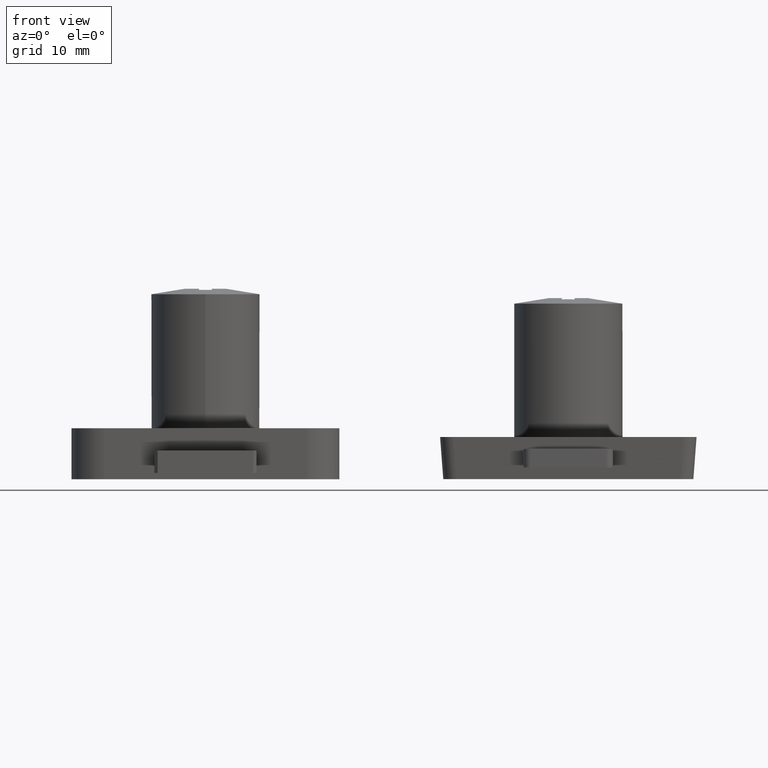
[diagram: clean part render]
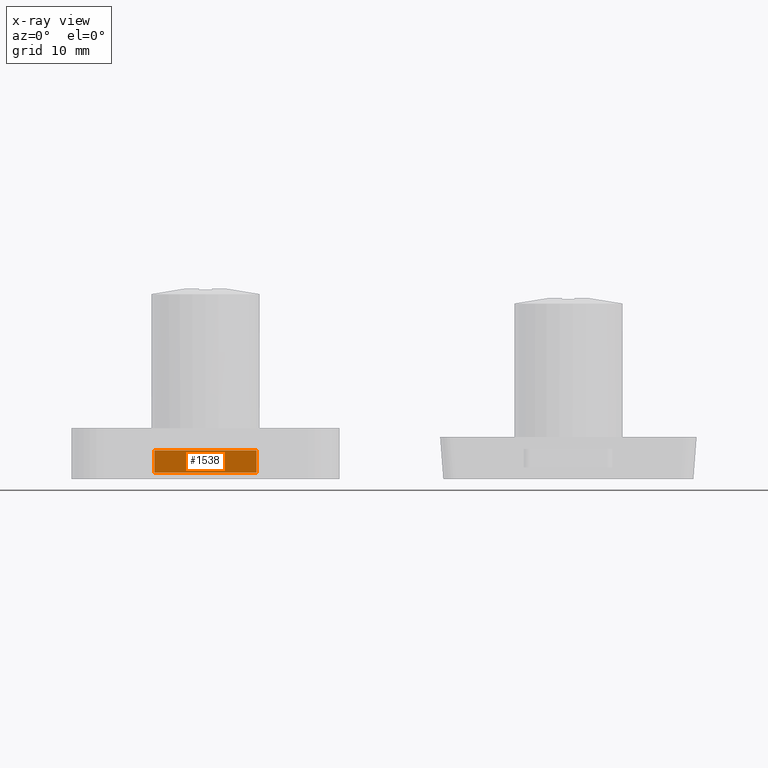
[diagram: x-ray — body ghosted, one internal face saturated and labeled with its STEP entity id]
A machine part, front view, then the same camera in x-ray: the body is ghosted and one INTERNAL B-rep face — a face not visible from any outside direction — is saturated and labeled: STEP entity #1538.
In plain terms, the highlighted planar face has unit normal (0, 1, 0).
Its self-contained STEP definition (entity closure, byte-faithful):
#146=FACE_OUTER_BOUND('',#256,.T.);
#256=EDGE_LOOP('',(#1181,#1182,#1183,#1184));
#369=LINE('',#2421,#503);
#375=LINE('',#2433,#509);
#377=LINE('',#2436,#511);
#378=LINE('',#2438,#512);
#503=VECTOR('',#1918,16.);
#509=VECTOR('',#1928,16.);
#511=VECTOR('',#1932,3.5);
#512=VECTOR('',#1935,3.5);
#719=VERTEX_POINT('',#2418);
#720=VERTEX_POINT('',#2420);
#723=VERTEX_POINT('',#2430);
#724=VERTEX_POINT('',#2432);
#885=EDGE_CURVE('',#720,#719,#369,.T.);
#891=EDGE_CURVE('',#724,#723,#375,.T.);
#893=EDGE_CURVE('',#723,#720,#377,.T.);
#894=EDGE_CURVE('',#719,#724,#378,.T.);
#1181=ORIENTED_EDGE('',*,*,#891,.T.);
#1182=ORIENTED_EDGE('',*,*,#893,.T.);
#1183=ORIENTED_EDGE('',*,*,#885,.T.);
#1184=ORIENTED_EDGE('',*,*,#894,.T.);
#1465=PLANE('',#1663);
#1538=ADVANCED_FACE('',(#146),#1465,.T.);
#1663=AXIS2_PLACEMENT_3D('',#2439,#1936,#1937);
#1918=DIRECTION('',(-1.,0.,0.));
#1928=DIRECTION('',(1.,0.,0.));
#1932=DIRECTION('',(0.,0.,-1.));
#1935=DIRECTION('',(0.,0.,1.));
#1936=DIRECTION('center_axis',(0.,1.,0.));
#1937=DIRECTION('ref_axis',(0.,0.,1.));
#2418=CARTESIAN_POINT('',(-8.,-21.,0.999999999999999));
#2420=CARTESIAN_POINT('',(8.,-21.,0.999999999999999));
#2421=CARTESIAN_POINT('',(8.,-21.,0.999999999999999));
#2430=CARTESIAN_POINT('',(8.,-21.,4.5));
#2432=CARTESIAN_POINT('',(-8.,-21.,4.5));
#2433=CARTESIAN_POINT('',(-8.,-21.,4.5));
#2436=CARTESIAN_POINT('',(8.,-21.,4.5));
#2438=CARTESIAN_POINT('',(-8.,-21.,0.999999999999999));
#2439=CARTESIAN_POINT('Origin',(0.,-21.,2.75));